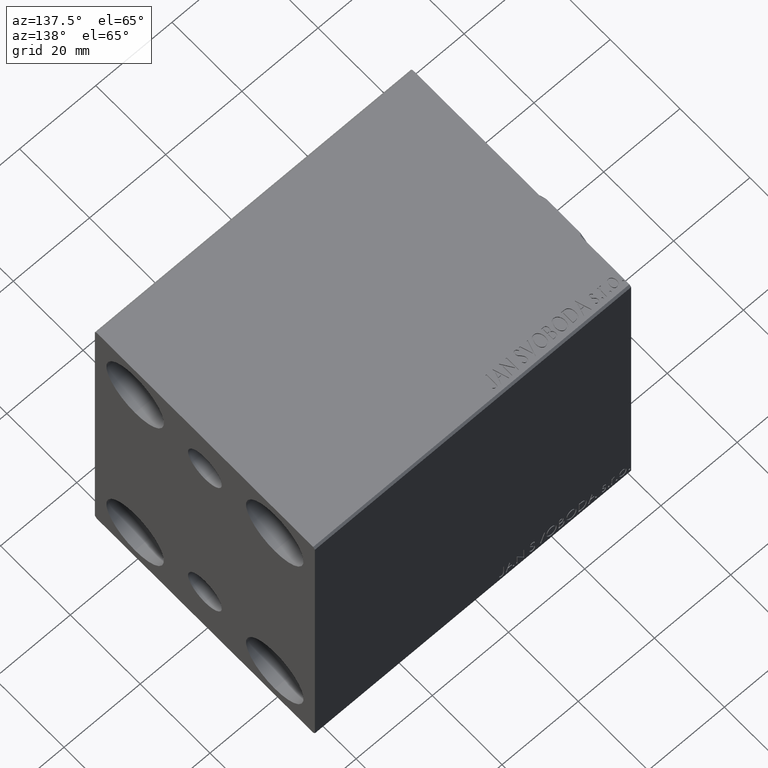
[diagram: clean part render]
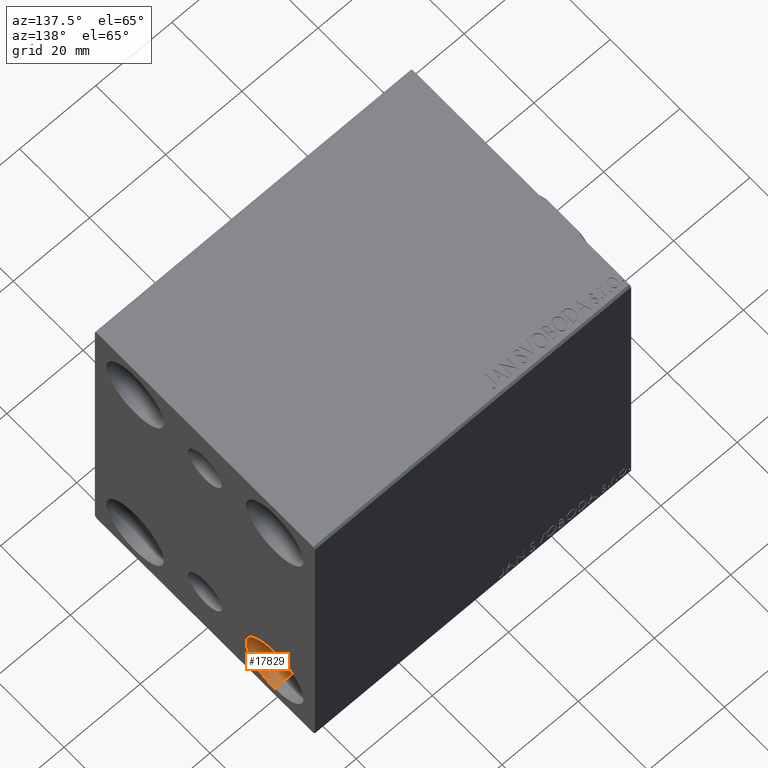
[diagram: same view with one face highlighted and labeled with its STEP entity id]
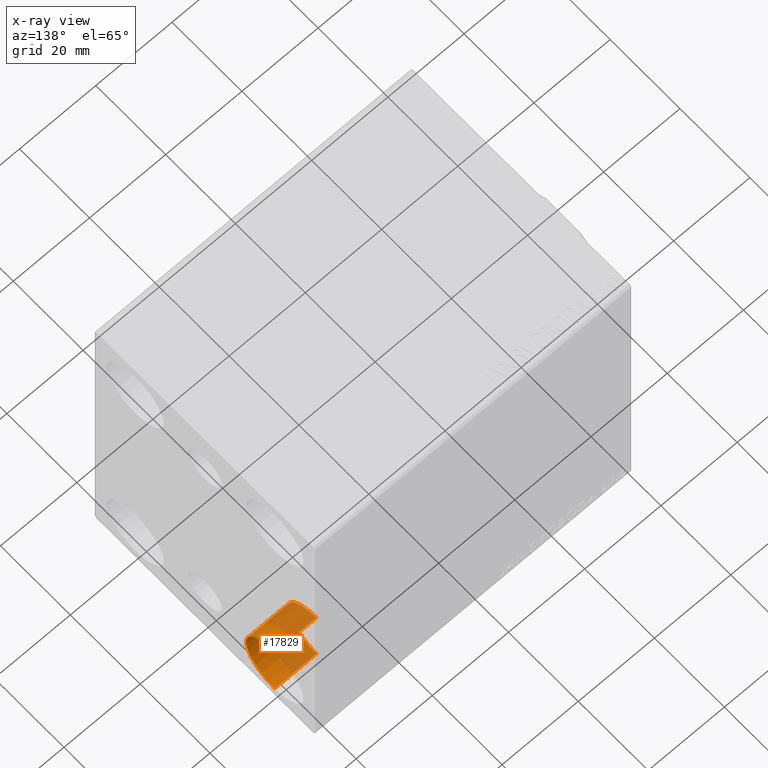
[diagram: x-ray of the same camera — body ghosted, the highlighted face saturated]
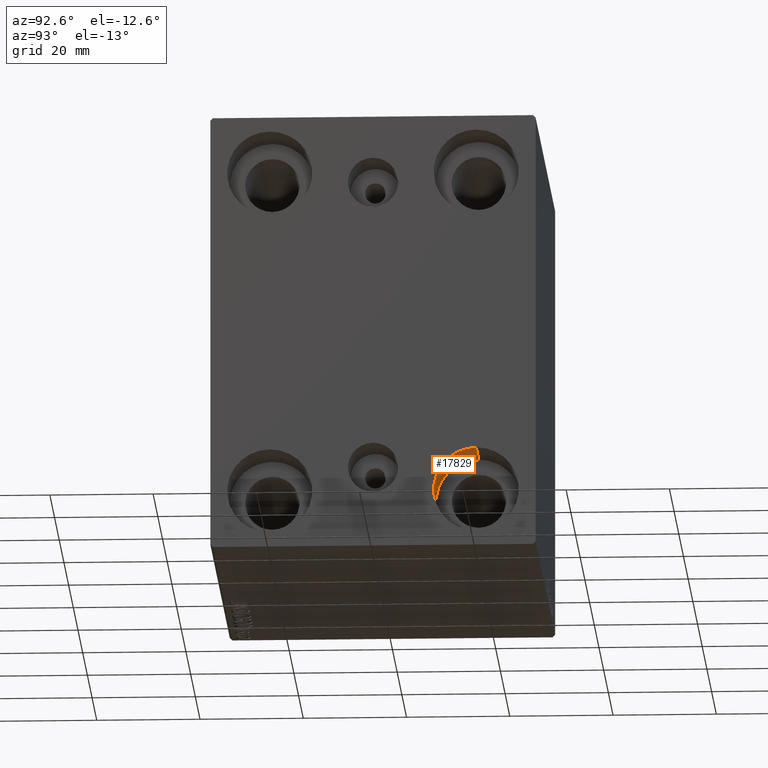
[diagram: same view with one face highlighted and labeled with its STEP entity id]
A machine part, auxiliary view. The second image highlights one B-rep face of the part: STEP entity #17829.
The next image is the same camera in x-ray: the body ghosted, the highlighted face saturated — about 51% of this face is hidden behind the body in this view.
A second angle (auxiliary view) of the same face is appended — the face is thin or edge-on in the first view.
In plain terms, the highlighted cylindrical surface (partial cylindrical patch) has radius 8.25 mm, axis along (1, 0, 0).
Its self-contained STEP definition (entity closure, byte-faithful):
#67 = LINE ( 'NONE', #13552, #17798 ) ;
#701 = CARTESIAN_POINT ( 'NONE',  ( 72.00000000000001421, 19.99999999999999645, -31.49999999999999289 ) ) ;
#1259 = ORIENTED_EDGE ( 'NONE', *, *, #6044, .T. ) ;
#2407 = DIRECTION ( 'NONE',  ( 1.000000000000000000, -0.000000000000000000, -0.000000000000000000 ) ) ;
#4613 = DIRECTION ( 'NONE',  ( -1.000000000000000000, -0.000000000000000000, -0.000000000000000000 ) ) ;
#4740 = CARTESIAN_POINT ( 'NONE',  ( 72.00000000000001421, 19.99999999999999645, -39.74999999999999289 ) ) ;
#5148 = VECTOR ( 'NONE', #2407, 1000.000000000000000 ) ;
#6043 = CARTESIAN_POINT ( 'NONE',  ( 83.00000000000000000, 19.99999999999999645, -39.74999999999999289 ) ) ;
#6044 = EDGE_CURVE ( 'NONE', #37925, #27188, #67, .T. ) ;
#7704 = DIRECTION ( 'NONE',  ( 0.000000000000000000, 0.000000000000000000, 1.000000000000000000 ) ) ;
#7925 = CARTESIAN_POINT ( 'NONE',  ( 72.00000000000001421, 19.99999999999999645, -31.49999999999999289 ) ) ;
#9862 = EDGE_CURVE ( 'NONE', #10303, #31214, #19212, .T. ) ;
#10303 = VERTEX_POINT ( 'NONE', #4740 ) ;
#10858 = EDGE_LOOP ( 'NONE', ( #23631, #1259, #42840, #33837 ) ) ;
#11798 = CARTESIAN_POINT ( 'NONE',  ( 83.00000000000000000, 19.99999999999999645, -23.24999999999999289 ) ) ;
#13552 = CARTESIAN_POINT ( 'NONE',  ( 72.00000000000001421, 19.99999999999999645, -23.24999999999999289 ) ) ;
#14372 = AXIS2_PLACEMENT_3D ( 'NONE', #7925, #4613, #7704 ) ;
#14887 = EDGE_CURVE ( 'NONE', #10303, #37925, #29178, .T. ) ;
#17798 = VECTOR ( 'NONE', #40542, 1000.000000000000000 ) ;
#17829 = ADVANCED_FACE ( 'NONE', ( #34320 ), #38517, .F. ) ;
#17965 = DIRECTION ( 'NONE',  ( 1.000000000000000000, -0.000000000000000000, -0.000000000000000000 ) ) ;
#19212 = LINE ( 'NONE', #32712, #5148 ) ;
#23631 = ORIENTED_EDGE ( 'NONE', *, *, #14887, .T. ) ;
#24587 = DIRECTION ( 'NONE',  ( 0.000000000000000000, 0.000000000000000000, -1.000000000000000000 ) ) ;
#27188 = VERTEX_POINT ( 'NONE', #11798 ) ;
#28858 = AXIS2_PLACEMENT_3D ( 'NONE', #42593, #39069, #31775 ) ;
#29178 = CIRCLE ( 'NONE', #14372, 8.250000000000000000 ) ;
#31214 = VERTEX_POINT ( 'NONE', #6043 ) ;
#31775 = DIRECTION ( 'NONE',  ( 0.000000000000000000, 0.000000000000000000, 1.000000000000000000 ) ) ;
#32081 = AXIS2_PLACEMENT_3D ( 'NONE', #701, #17965, #24587 ) ;
#32712 = CARTESIAN_POINT ( 'NONE',  ( 72.00000000000001421, 19.99999999999999645, -39.74999999999999289 ) ) ;
#33837 = ORIENTED_EDGE ( 'NONE', *, *, #9862, .F. ) ;
#34320 = FACE_OUTER_BOUND ( 'NONE', #10858, .T. ) ;
#35950 = CIRCLE ( 'NONE', #28858, 8.250000000000000000 ) ;
#36015 = EDGE_CURVE ( 'NONE', #31214, #27188, #35950, .T. ) ;
#37925 = VERTEX_POINT ( 'NONE', #40555 ) ;
#38517 = CYLINDRICAL_SURFACE ( 'NONE', #32081, 8.250000000000000000 ) ;
#39069 = DIRECTION ( 'NONE',  ( -1.000000000000000000, -0.000000000000000000, -0.000000000000000000 ) ) ;
#40542 = DIRECTION ( 'NONE',  ( 1.000000000000000000, -0.000000000000000000, -0.000000000000000000 ) ) ;
#40555 = CARTESIAN_POINT ( 'NONE',  ( 72.00000000000001421, 19.99999999999999645, -23.24999999999999289 ) ) ;
#42593 = CARTESIAN_POINT ( 'NONE',  ( 83.00000000000000000, 19.99999999999999645, -31.49999999999999289 ) ) ;
#42840 = ORIENTED_EDGE ( 'NONE', *, *, #36015, .F. ) ;